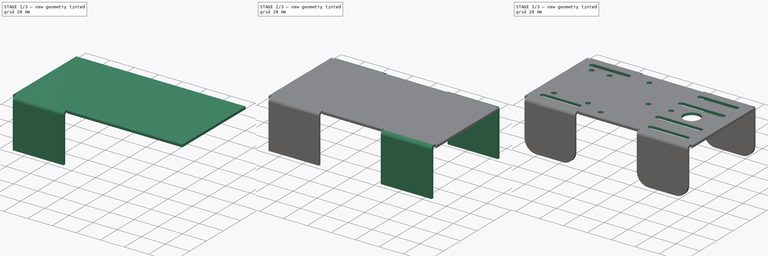
[diagram: build sequence overview — one tinted view per stage of 3, left to right]
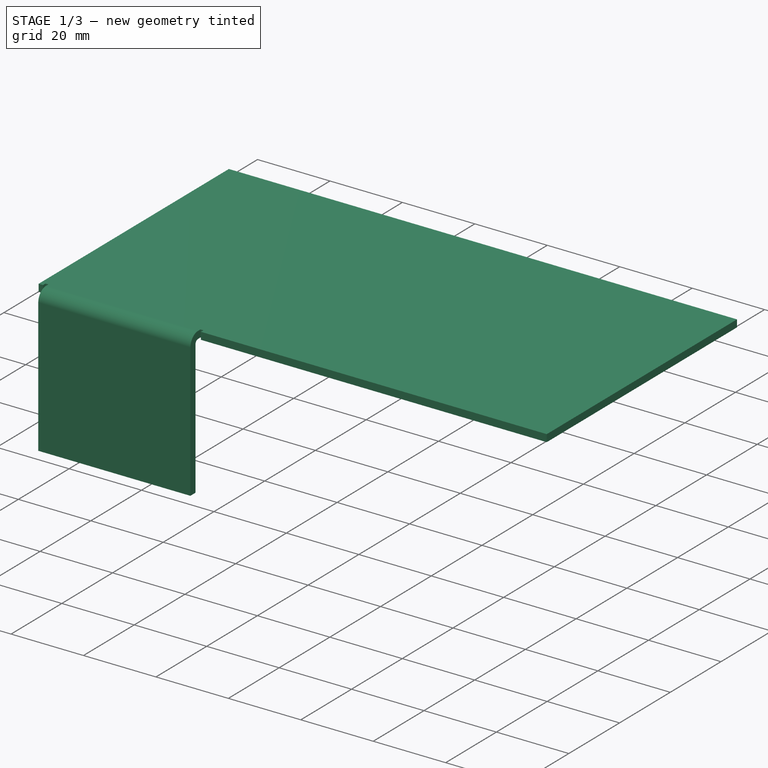
[diagram: stage 1 of 3 — iso view after this stage's code; geometry added in this stage tinted green]
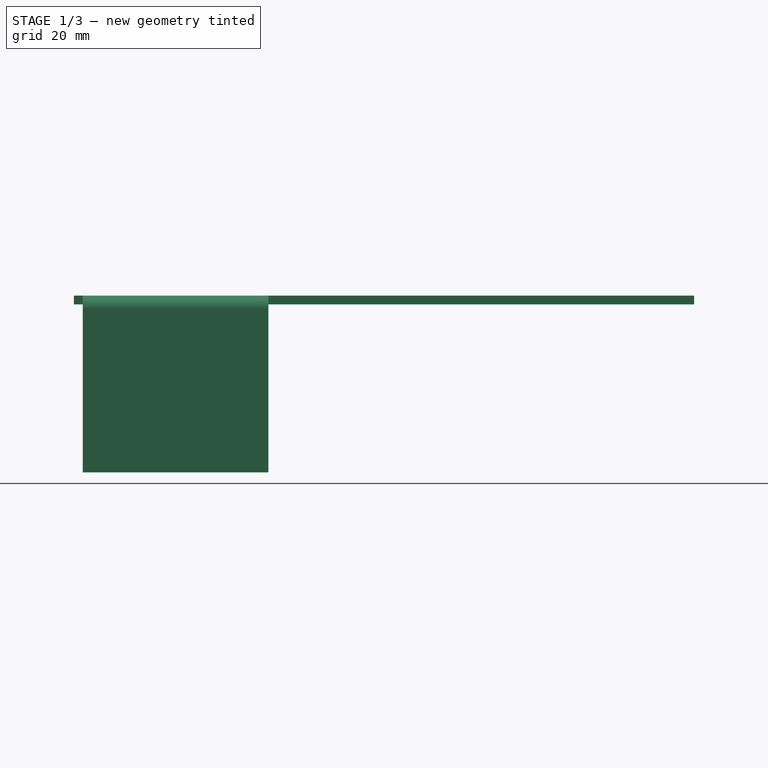
[diagram: stage 1 of 3 — front view after this stage's code; geometry added in this stage tinted green]
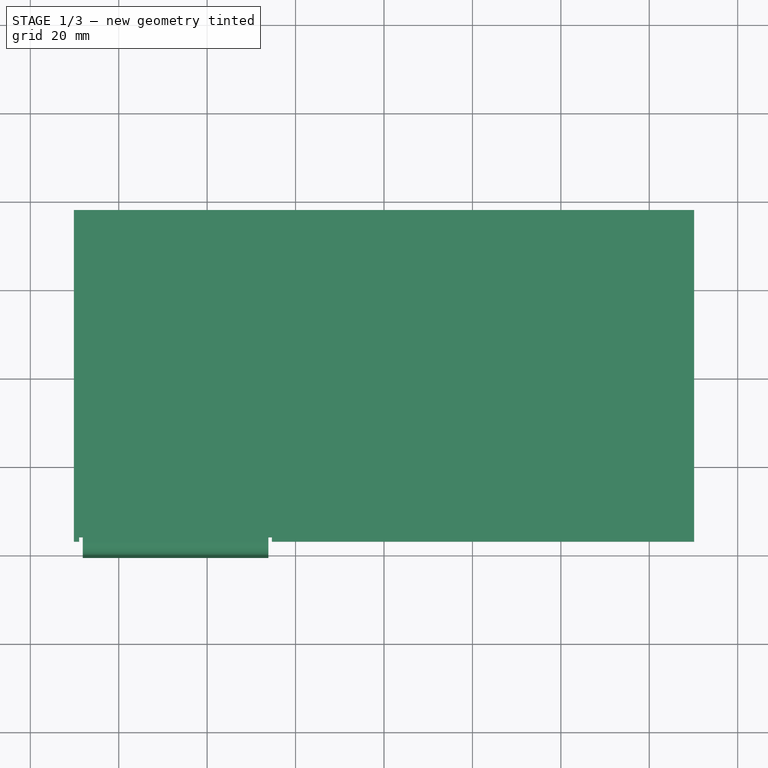
[diagram: stage 1 of 3 — top view after this stage's code; geometry added in this stage tinted green]
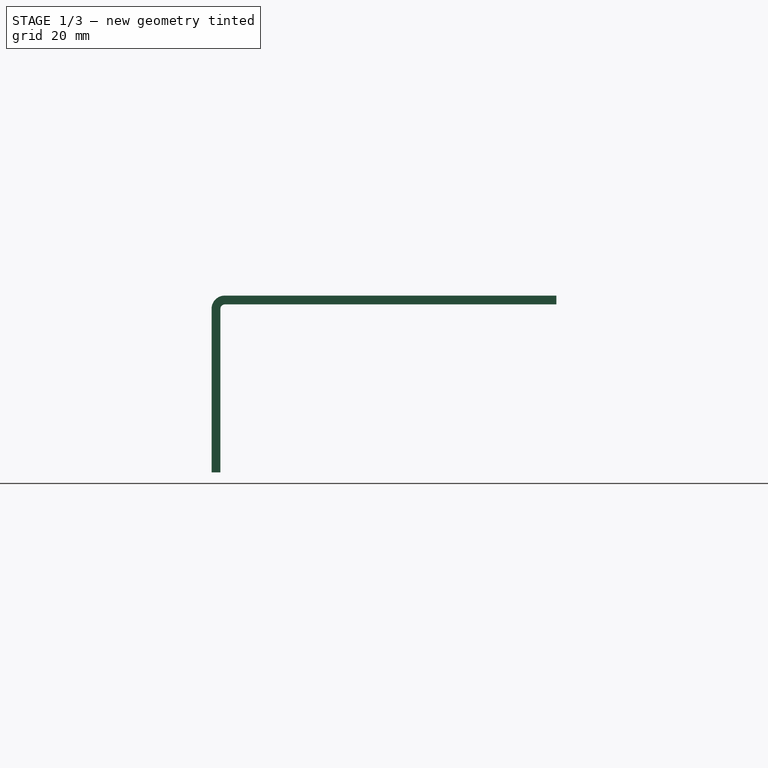
[diagram: stage 1 of 3 — right view after this stage's code; geometry added in this stage tinted green]
FCSTD DOCUMENT  (FreeCAD 0.19R24291 (Git))
Label: chassis_draft
License: All rights reserved
LicenseURL: http://en.wikipedia.org/wiki/All_rights_reserved
objects: PartDesign::FeaturePython×5, Sketcher::SketchObject×2, PartDesign::Fillet×1, PartDesign::Pocket×1, PartDesign::Body×1
note: 12 computed .brp shape members not serialized (recipe doc carries the construction recipe); baked Part::Feature solids carry a one-line shape summary decoded from their .brp

FEATURE [Sketcher::SketchObject] Sketch
  FullyConstrained = true
  MapMode = 5
  Support = -> [XY_Plane]
  sketch-geometry (4):
    g0: LineSegment StartX=-70.15 StartY=37.5 StartZ=0 EndX=70.15 EndY=37.5 EndZ=0
    g1: LineSegment StartX=70.15 StartY=37.5 StartZ=0 EndX=70.15 EndY=-37.5 EndZ=0
    g2: LineSegment StartX=70.15 StartY=-37.5 StartZ=0 EndX=-70.15 EndY=-37.5 EndZ=0
    g3: LineSegment StartX=-70.15 StartY=-37.5 StartZ=0 EndX=-70.15 EndY=37.5 EndZ=0
  constraints (11):
    c: Coincident(g0,g1)
    c: Coincident(g1,g2)
    c: Coincident(g2,g3)
    c: Coincident(g3,g0)
    c: Horizontal(g0)
    c: Horizontal(g2)
    c: Vertical(g1)
    c: Vertical(g3)
    c: Symmetric(g0,g2,g-1)
    c: DistanceY(g1,g1) = 75
    c: DistanceX(g0,g0) = 140.3
FEATURE [PartDesign::FeaturePython] BaseBend  # WARN: FeaturePython — macro-defined, semantics opaque (R4)
  BendSide = 0
  BendSketch = -> Sketch
  MidPlane = false
  Reverse = false
  length = 100
  radius = 1
  thickness = 2
FEATURE [PartDesign::FeaturePython] Bend  # WARN: FeaturePython — macro-defined, semantics opaque (R4)
  AutoMiter = true
  BaseFeature = -> BaseBend
  BendType = 0
  LengthList = [37]
  ReliefFactor = 0.7
  UseReliefFactor = false
  angle = 90
  baseObject = -> BaseBend [Edge10]
  bendAList = [90]
  extend1 = 0
  extend2 = 0
  gap1 = 96.3
  gap2 = 2
  invert = false
  kfactor = 0.5
  length = 37
  maxExtendDist = 5
  minGap = 0.1
  minReliefGap = 1
  miterangle1 = 0
  miterangle2 = 0
  offset = 0
  radius = 1
  reliefType = 0
  reliefd = 1
  reliefw = 0.8
  sketchflip = false
  sketchinvert = false
  unfold = false
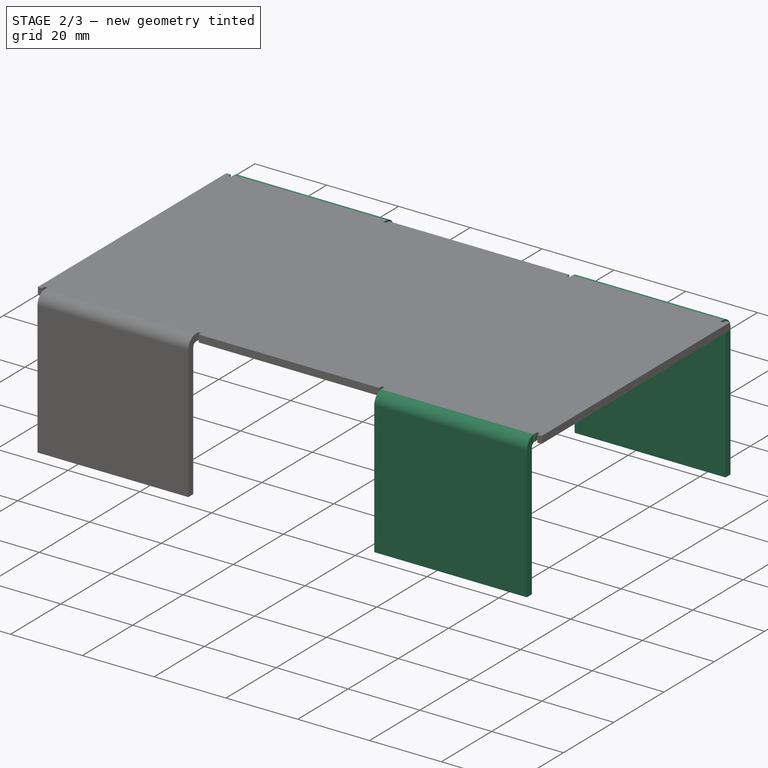
[diagram: stage 2 of 3 — iso view after this stage's code; geometry added in this stage tinted green]
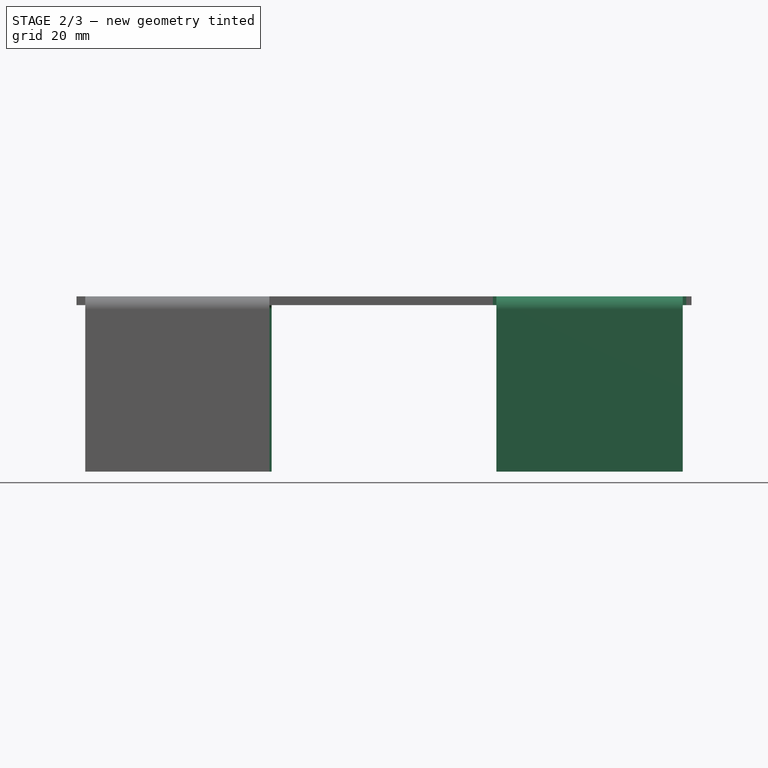
[diagram: stage 2 of 3 — front view after this stage's code; geometry added in this stage tinted green]
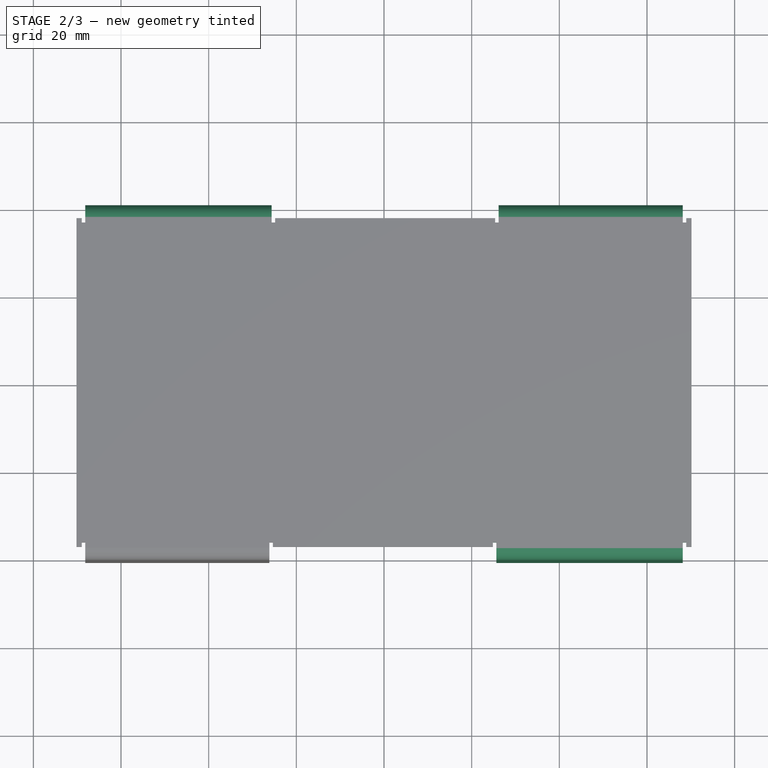
[diagram: stage 2 of 3 — top view after this stage's code; geometry added in this stage tinted green]
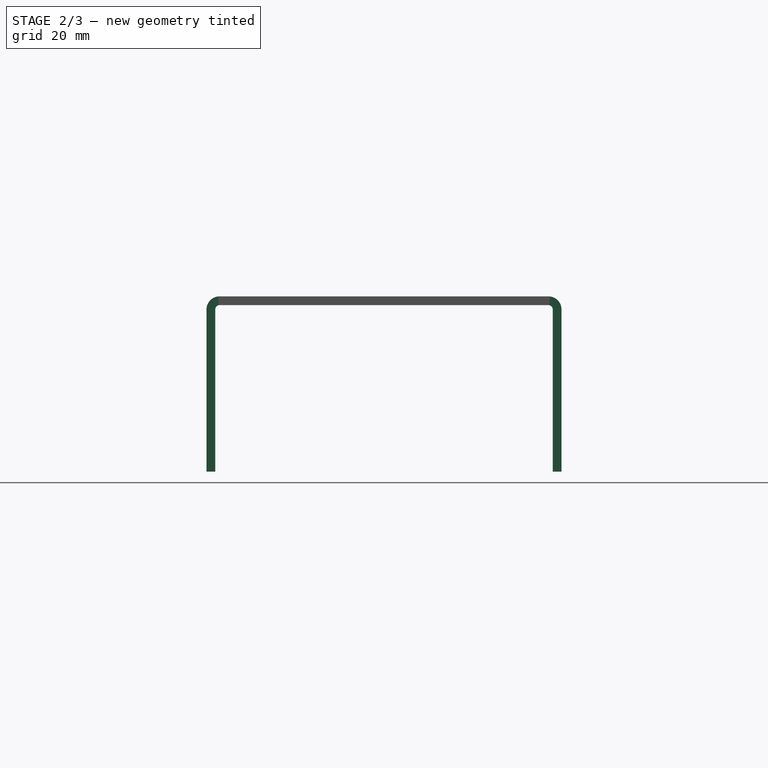
[diagram: stage 2 of 3 — right view after this stage's code; geometry added in this stage tinted green]
FEATURE [PartDesign::FeaturePython] Bend001  # WARN: FeaturePython — macro-defined, semantics opaque (R4)
  AutoMiter = true
  BaseFeature = -> Bend
  BendType = 0
  LengthList = [37]
  ReliefFactor = 0.7
  UseReliefFactor = false
  angle = 90
  baseObject = -> Bend [Edge26]
  bendAList = [90]
  extend1 = 0
  extend2 = 0
  gap1 = 2
  gap2 = 51
  invert = false
  kfactor = 0.5
  length = 37
  maxExtendDist = 5
  minGap = 0.1
  minReliefGap = 1
  miterangle1 = 0
  miterangle2 = 0
  offset = 0
  radius = 1
  reliefType = 0
  reliefd = 1
  reliefw = 0.8
  sketchflip = false
  sketchinvert = false
  unfold = false
FEATURE [PartDesign::FeaturePython] Bend002  # WARN: FeaturePython — macro-defined, semantics opaque (R4)
  AutoMiter = true
  BaseFeature = -> Bend001
  BendType = 0
  LengthList = [37]
  ReliefFactor = 0.7
  UseReliefFactor = false
  angle = 90
  baseObject = -> Bend001 [Edge24]
  bendAList = [90]
  extend1 = 0
  extend2 = 0
  gap1 = 96.3
  gap2 = 2
  invert = false
  kfactor = 0.5
  length = 37
  maxExtendDist = 5
  minGap = 0.1
  minReliefGap = 1
  miterangle1 = 0
  miterangle2 = 0
  offset = 0
  radius = 1
  reliefType = 0
  reliefd = 1
  reliefw = 0.8
  sketchflip = false
  sketchinvert = false
  unfold = false
FEATURE [PartDesign::FeaturePython] Bend003  # WARN: FeaturePython — macro-defined, semantics opaque (R4)
  AutoMiter = true
  BaseFeature = -> Bend002
  BendType = 0
  LengthList = [37]
  ReliefFactor = 0.7
  UseReliefFactor = false
  angle = 90
  baseObject = -> Bend002 [Edge24]
  bendAList = [90]
  extend1 = 0
  extend2 = 0
  gap1 = 2
  gap2 = 51
  invert = false
  kfactor = 0.5
  length = 37
  maxExtendDist = 5
  minGap = 0.1
  minReliefGap = 1
  miterangle1 = 0
  miterangle2 = 0
  offset = 0
  radius = 1
  reliefType = 0
  reliefd = 1
  reliefw = 0.8
  sketchflip = false
  sketchinvert = false
  unfold = false
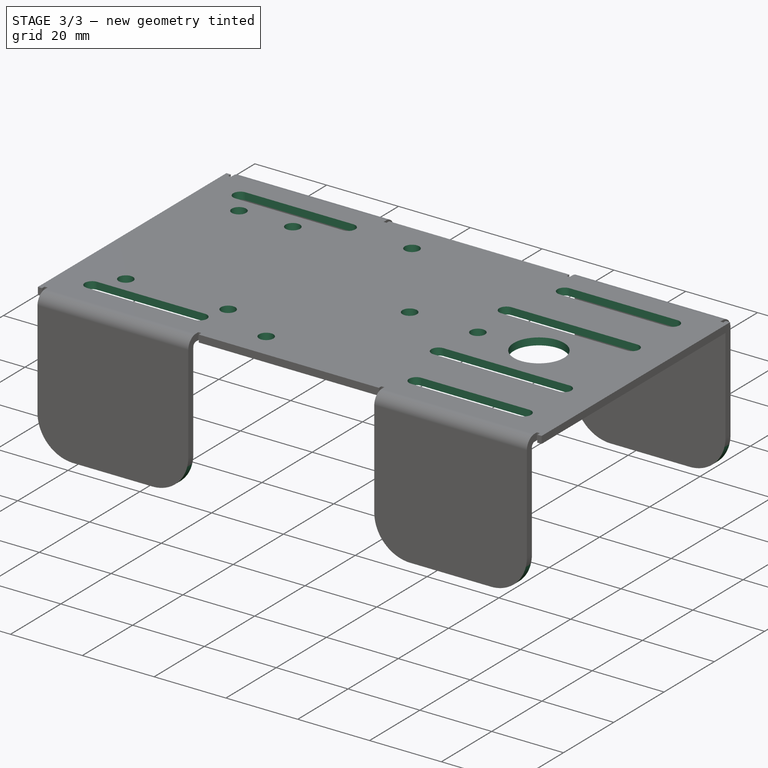
[diagram: stage 3 of 3 — iso view after this stage's code; geometry added in this stage tinted green]
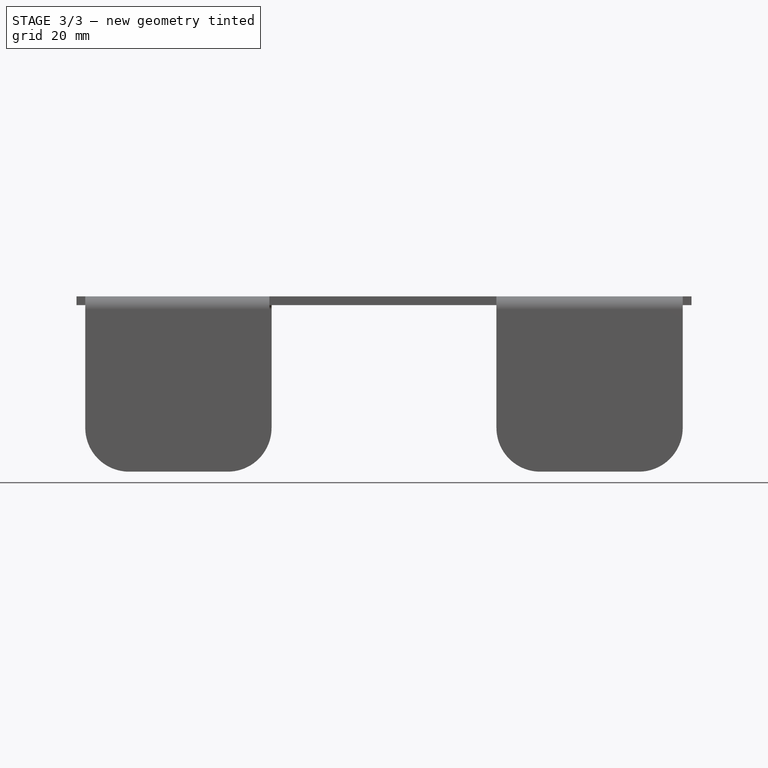
[diagram: stage 3 of 3 — front view after this stage's code; geometry added in this stage tinted green]
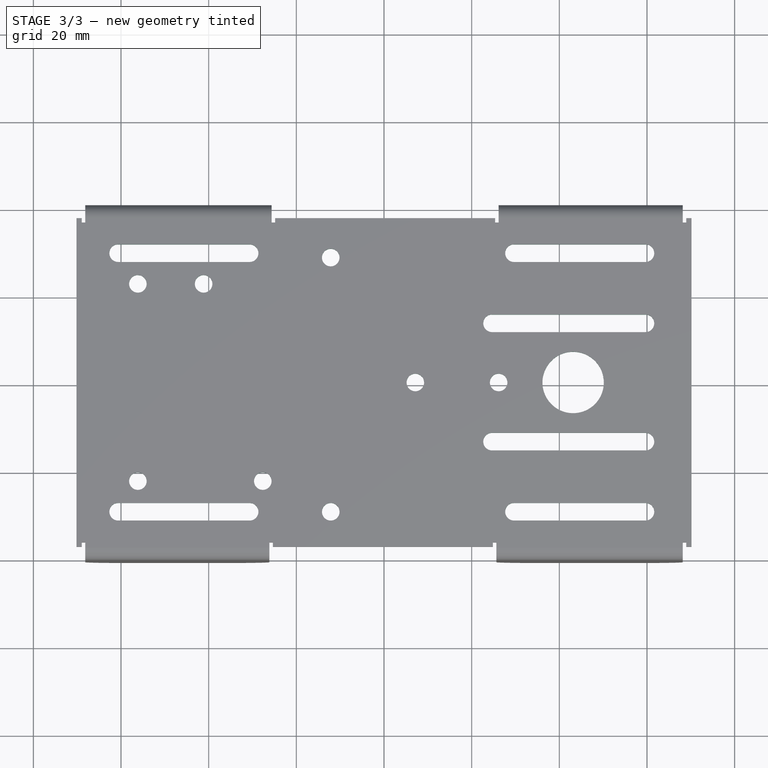
[diagram: stage 3 of 3 — top view after this stage's code; geometry added in this stage tinted green]
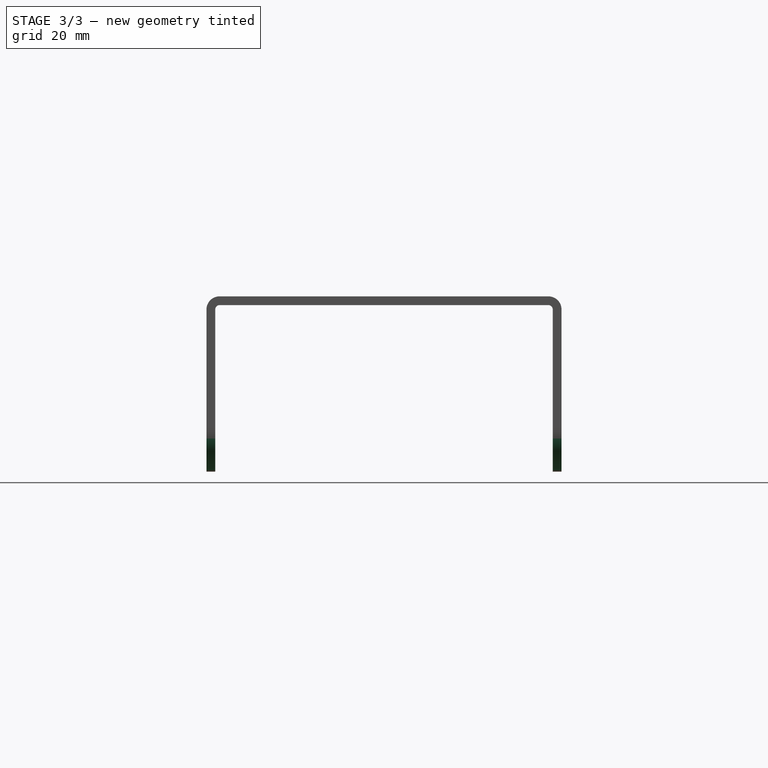
[diagram: stage 3 of 3 — right view after this stage's code; geometry added in this stage tinted green]
FEATURE [PartDesign::Fillet] Fillet
  Base = -> Bend003 [Edge8,Edge2,Edge172,Edge171,Edge170,Edge169,Edge168,Edge167]
  BaseFeature = -> Bend003
  Radius = 10
  SupportTransform = false
FEATURE [Sketcher::SketchObject] Sketch001
  ExternalGeometry = -> [Fillet]
  FullyConstrained = true
  MapMode = 5
  Placement = pos=(0,0,2) rot=(0,0,1;0rad)
  Support = -> [Fillet]
  sketch-geometry (33):
    g0: Circle CenterX=43.15 CenterY=0 CenterZ=0 NormalX=0 NormalY=0 NormalZ=1 AngleXU=0 Radius=7
    g1: ArcOfCircle CenterX=29.65 CenterY=29.5 CenterZ=0 NormalX=0 NormalY=0 NormalZ=1 AngleXU=0 Radius=2 StartAngle=1.5708 EndAngle=4.71239
    g2: ArcOfCircle CenterX=59.65 CenterY=29.5 CenterZ=0 NormalX=0 NormalY=0 NormalZ=1 AngleXU=0 Radius=2 StartAngle=4.71239 EndAngle=7.85398
    g3: LineSegment StartX=29.65 StartY=27.5 StartZ=0 EndX=59.65 EndY=27.5 EndZ=0
    g4: LineSegment StartX=29.65 StartY=31.5 StartZ=0 EndX=59.65 EndY=31.5 EndZ=0
    g5: ArcOfCircle CenterX=29.65 CenterY=-29.5 CenterZ=0 NormalX=0 NormalY=0 NormalZ=1 AngleXU=0 Radius=2 StartAngle=1.5708 EndAngle=4.71239
    g6: ArcOfCircle CenterX=59.65 CenterY=-29.5 CenterZ=0 NormalX=0 NormalY=0 NormalZ=1 AngleXU=0 Radius=2 StartAngle=4.71239 EndAngle=7.85398
    g7: LineSegment StartX=29.65 StartY=-31.5 StartZ=0 EndX=59.65 EndY=-31.5 EndZ=0
    g8: LineSegment StartX=29.65 StartY=-27.5 StartZ=0 EndX=59.65 EndY=-27.5 EndZ=0
    g9: ArcOfCircle CenterX=24.65 CenterY=13.5 CenterZ=0 NormalX=0 NormalY=0 NormalZ=1 AngleXU=0 Radius=2 StartAngle=1.5708 EndAngle=4.71239
    g10: ArcOfCircle CenterX=59.65 CenterY=13.5 CenterZ=0 NormalX=0 NormalY=0 NormalZ=1 AngleXU=0 Radius=2 StartAngle=4.71239 EndAngle=7.85398
    g11: LineSegment StartX=24.65 StartY=11.5 StartZ=0 EndX=59.65 EndY=11.5 EndZ=0
    g12: LineSegment StartX=24.65 StartY=15.5 StartZ=0 EndX=59.65 EndY=15.5 EndZ=0
    g13: ArcOfCircle CenterX=24.65 CenterY=-13.5 CenterZ=0 NormalX=0 NormalY=0 NormalZ=1 AngleXU=0 Radius=2 StartAngle=1.5708 EndAngle=4.71239
    g14: ArcOfCircle CenterX=59.65 CenterY=-13.5 CenterZ=0 NormalX=0 NormalY=0 NormalZ=1 AngleXU=0 Radius=2 StartAngle=4.71239 EndAngle=7.85398
    g15: LineSegment StartX=24.65 StartY=-15.5 StartZ=0 EndX=59.65 EndY=-15.5 EndZ=0
    g16: LineSegment StartX=24.65 StartY=-11.5 StartZ=0 EndX=59.65 EndY=-11.5 EndZ=0
    g17: Circle CenterX=26.15 CenterY=0 CenterZ=0 NormalX=0 NormalY=0 NormalZ=1 AngleXU=0 Radius=2
    g18: Circle CenterX=7.15 CenterY=0 CenterZ=0 NormalX=0 NormalY=0 NormalZ=1 AngleXU=0 Radius=2
    g19: ArcOfCircle CenterX=-60.65 CenterY=29.5 CenterZ=0 NormalX=0 NormalY=0 NormalZ=1 AngleXU=0 Radius=2 StartAngle=1.5708 EndAngle=4.71239
    g20: ArcOfCircle CenterX=-30.65 CenterY=29.5 CenterZ=0 NormalX=0 NormalY=0 NormalZ=1 AngleXU=0 Radius=2 StartAngle=4.71239 EndAngle=7.85398
    g21: LineSegment StartX=-60.65 StartY=27.5 StartZ=0 EndX=-30.65 EndY=27.5 EndZ=0
    g22: LineSegment StartX=-60.65 StartY=31.5 StartZ=0 EndX=-30.65 EndY=31.5 EndZ=0
    g23: ArcOfCircle CenterX=-60.65 CenterY=-29.5 CenterZ=0 NormalX=0 NormalY=0 NormalZ=1 AngleXU=0 Radius=2 StartAngle=1.5708 EndAngle=4.71239
    g24: ArcOfCircle CenterX=-30.65 CenterY=-29.5 CenterZ=0 NormalX=0 NormalY=0 NormalZ=1 AngleXU=0 Radius=2 StartAngle=4.71239 EndAngle=7.85398
    g25: LineSegment StartX=-60.65 StartY=-31.5 StartZ=0 EndX=-30.65 EndY=-31.5 EndZ=0
    g26: LineSegment StartX=-60.65 StartY=-27.5 StartZ=0 EndX=-30.65 EndY=-27.5 EndZ=0
    g27: Circle CenterX=-56.15 CenterY=22.5 CenterZ=0 NormalX=0 NormalY=0 NormalZ=1 AngleXU=0 Radius=2
    g28: Circle CenterX=-41.15 CenterY=22.5 CenterZ=0 NormalX=0 NormalY=0 NormalZ=1 AngleXU=0 Radius=2
    g29: Circle CenterX=-12.15 CenterY=28.5 CenterZ=0 NormalX=0 NormalY=0 NormalZ=1 AngleXU=0 Radius=2
    g30: Circle CenterX=-12.15 CenterY=-29.5 CenterZ=0 NormalX=0 NormalY=0 NormalZ=1 AngleXU=0 Radius=2
    g31: Circle CenterX=-27.65 CenterY=-22.5 CenterZ=0 NormalX=0 NormalY=0 NormalZ=1 AngleXU=0 Radius=2
    g32: Circle CenterX=-56.15 CenterY=-22.5 CenterZ=0 NormalX=0 NormalY=0 NormalZ=1 AngleXU=0 Radius=2
  constraints (87):
    c: Radius(g0) = 7
    c: DistanceY(g-1,g0) = 0
    c: DistanceX(g0,g-3) = 27
    c: Tangent(g1,g4) = 1.5708
    c: Tangent(g1,g3) = -1.5708
    c: Tangent(g3,g2) = -1.5708
    c: Tangent(g4,g2) = 1.5708
    c: Horizontal(g3)
    c: Equal(g1,g2)
    c: DistanceY(g2,g2) = 4
    c: DistanceX(g3,g3) = 30
    c: DistanceY(g2,g-3) = 6
    c: DistanceX(g2,g-3) = 10.5
    c: Tangent(g5,g8) = 1.5708
    c: Tangent(g5,g7) = -1.5708
    c: Tangent(g7,g6) = -1.5708
    c: Tangent(g8,g6) = 1.5708
    c: Horizontal(g7)
    c: Equal(g5,g6)
    c: DistanceY(g6,g6) = 4
    c: DistanceX(g7,g7) = 30
    c: DistanceY(g-3,g6) = 6
    c: DistanceX(g6,g-3) = 10.5
    c: Tangent(g9,g12) = 1.5708
    c: Tangent(g9,g11) = -1.5708
    c: Tangent(g11,g10) = -1.5708
    c: Tangent(g12,g10) = 1.5708
    c: Horizontal(g11)
    c: Equal(g9,g10)
    c: DistanceY(g10,g10) = 4
    c: DistanceX(g11,g11) = 35
    c: DistanceX(g10,g-3) = 10.5
    c: DistanceY(g10,g-3) = 22
    c: Tangent(g13,g16) = 1.5708
    c: Tangent(g13,g15) = -1.5708
    c: Tangent(g15,g14) = -1.5708
    c: Tangent(g16,g14) = 1.5708
    c: Horizontal(g15)
    c: Equal(g13,g14)
    c: DistanceY(g14,g14) = 4
    c: DistanceX(g15,g15) = 35
    c: DistanceX(g14,g-3) = 10.5
    c: DistanceY(g-3,g14) = 22
    c: Radius(g17) = 2
    c: DistanceY(g-1,g17) = 0
    c: DistanceX(g17,g-3) = 44
    c: PointOnObject(g18,g-1)
    c: Radius(g18) = 2
    c: DistanceX(g18,g-3) = 63
    c: Tangent(g19,g22) = 1.5708
    c: Tangent(g19,g21) = -1.5708
    c: Tangent(g21,g20) = -1.5708
    c: Tangent(g22,g20) = 1.5708
    c: Horizontal(g21)
    c: Equal(g19,g20)
    c: DistanceY(g20,g20) = 4
    c: DistanceX(g21,g21) = 30
    c: DistanceX(g-4,g19) = 9.5
    c: DistanceY(g19,g-4) = 6
    c: Tangent(g23,g26) = 1.5708
    c: Tangent(g23,g25) = -1.5708
    c: Tangent(g25,g24) = -1.5708
    c: Tangent(g26,g24) = 1.5708
    c: Horizontal(g25)
    c: Equal(g23,g24)
    c: DistanceY(g24,g24) = 4
    c: DistanceX(g25,g25) = 30
    c: DistanceX(g-4,g23) = 9.5
    c: DistanceY(g-4,g23) = 6
    c: Radius(g27) = 2
    c: Radius(g28) = 2
    c: Radius(g29) = 2
    c: Radius(g30) = 2
    c: Radius(g31) = 2
    c: Radius(g32) = 2
    c: DistanceY(g-4,g31) = 15
    c: DistanceY(g-4,g32) = 15
    c: DistanceX(g-4,g32) = 14
    c: DistanceX(g-4,g31) = 42.5
    c: DistanceY(g27,g-4) = 15
    c: DistanceY(g28,g-4) = 15
    c: DistanceX(g-4,g27) = 14
    c: DistanceX(g-4,g28) = 29
    c: DistanceY(g29,g-4) = 9
    c: DistanceY(g-4,g30) = 8
    c: DistanceX(g-4,g29) = 58
    c: DistanceX(g-4,g30) = 58
FEATURE [PartDesign::Pocket] Pocket
  BaseFeature = -> Fillet
  Length = 2
  Length2 = 100
  Profile = -> Sketch001
  Type = 0
FEATURE [PartDesign::Body] Body
  Group = -> [Sketch,BaseBend,Bend,Bend001,Bend002,Bend003,Fillet,Sketch001,Pocket]
  Origin = -> Origin
  Tip = -> Pocket
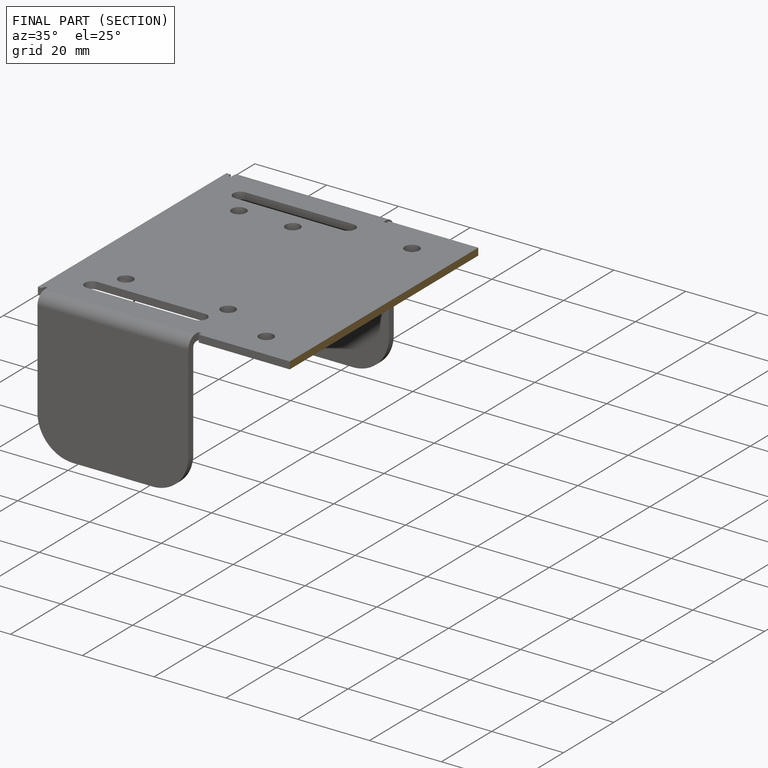
[diagram: finished part — half-section view (interior)]
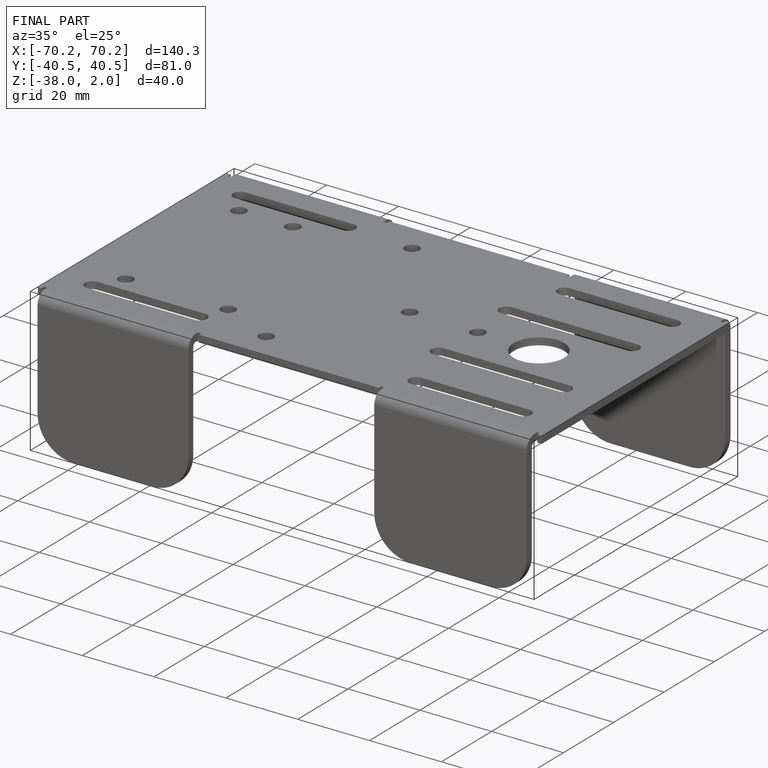
[diagram: finished part — iso view with bounding-box wireframe]
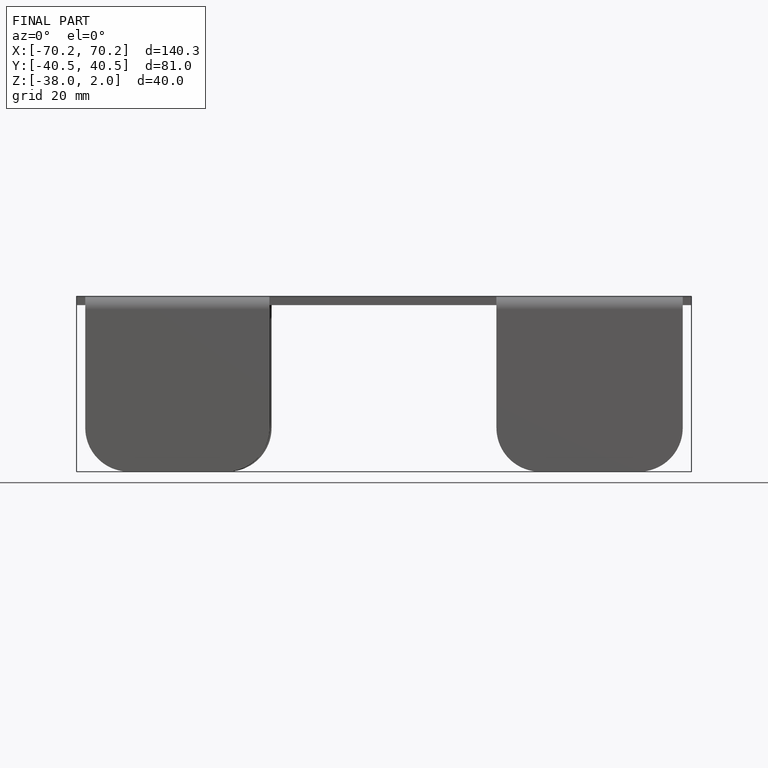
[diagram: finished part — front view with bounding-box wireframe]
